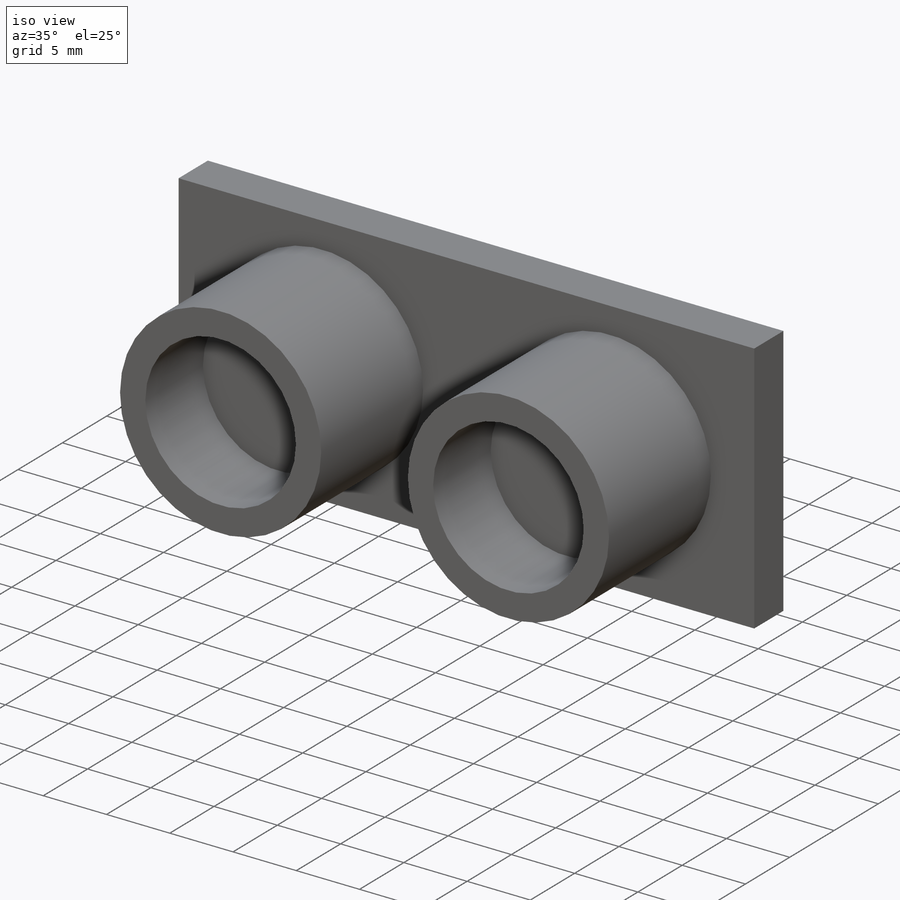
[diagram: iso view]
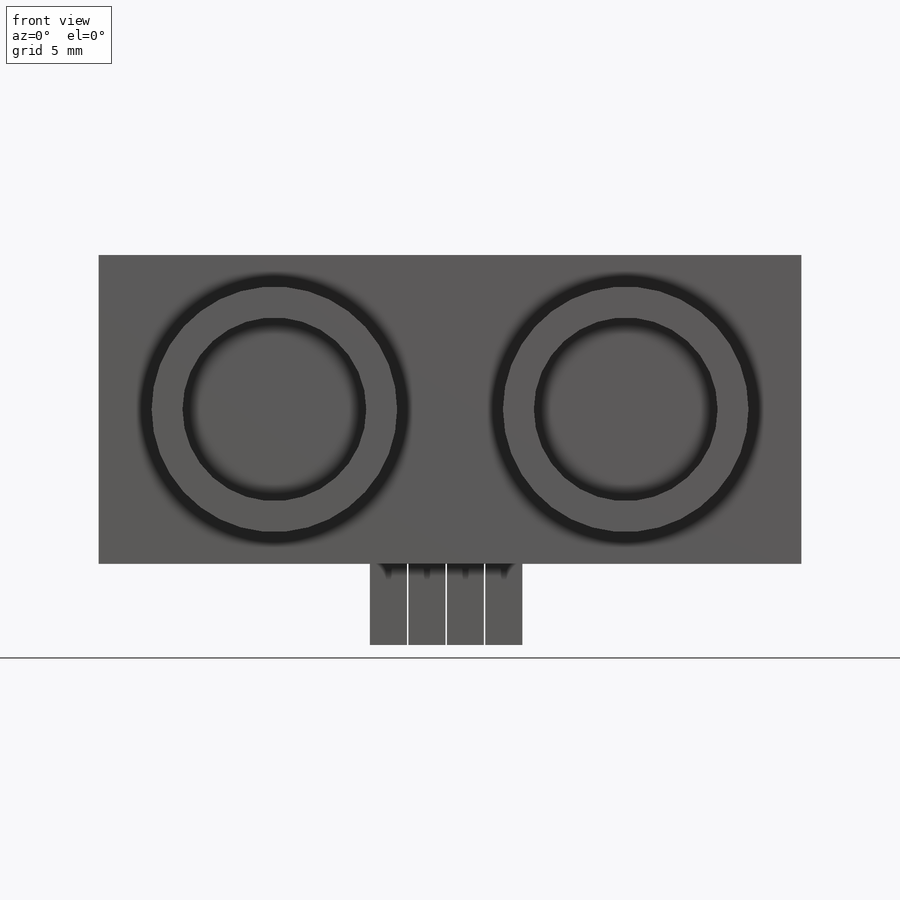
[diagram: front view]
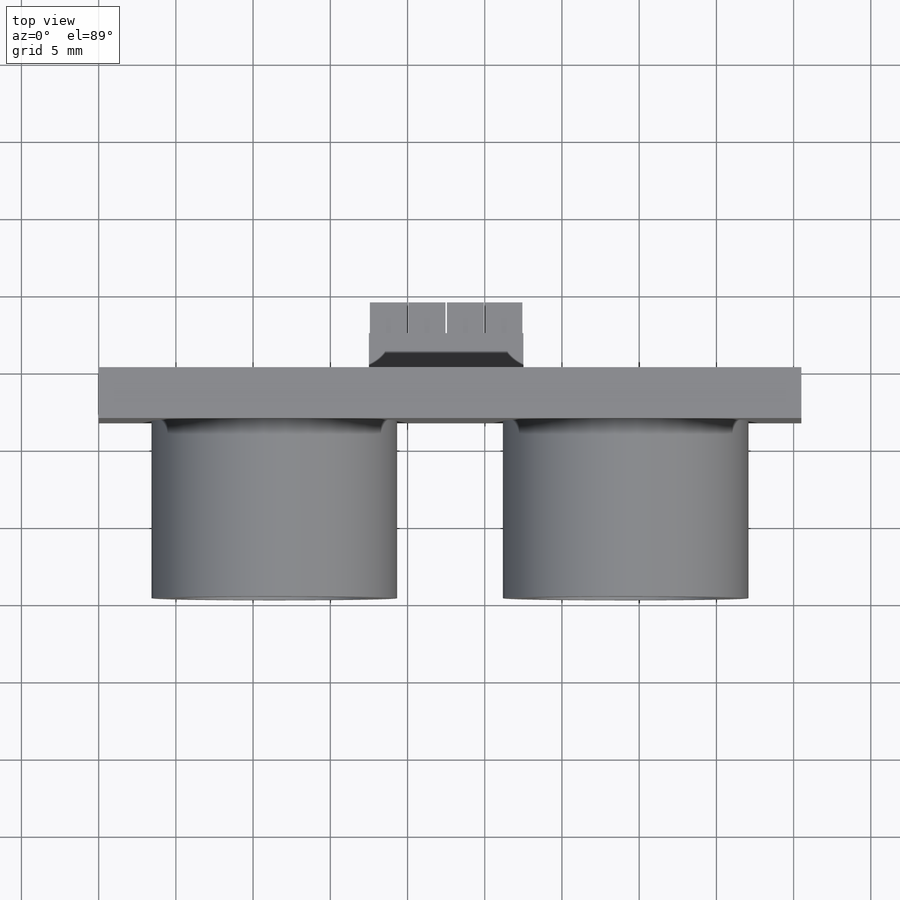
[diagram: top view]
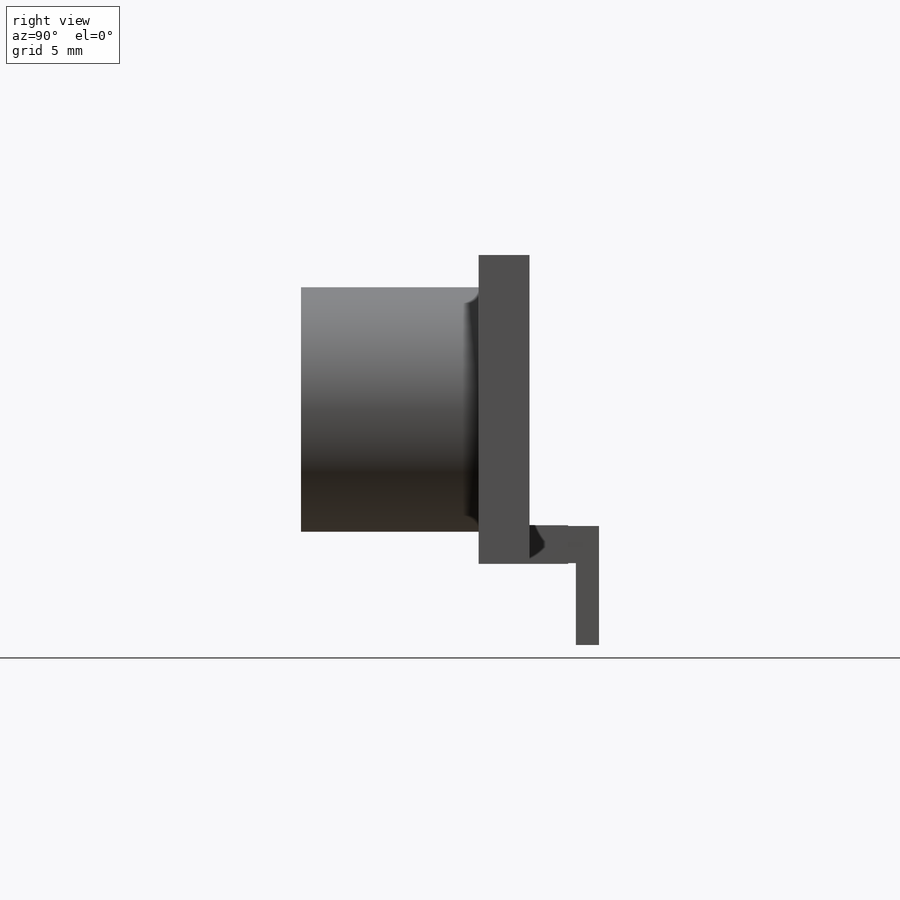
[diagram: right view]
SOLIDWORKS PART (.sldprt)
format: sldprt  version: not decoded by parser v0  size: 289,280 bytes
history: native  units: mm
features: sketch x6, extrude x5, plane x3, material x1, cut_extrude x1 (+10 scaffold rows collapsed)
feature tree (26):
  scaffold x10  (default folders/planes/origin — collapsed)
  material  "Material <not specified>"
  plane  "Alzado"
  plane  "Planta"
  plane  "Vista lateral"
  sketch  "Croquis1"  dims[D1=45.5mm D2=20.0mm]
  extrude  "Saliente-Extruir1"  Depth=3.3mm
  sketch  "Croquis2"  dims[c1.D1=15.9mm c1.D2=2.0mm c2.D2=270.0deg c3.D2=11.375mm]
  extrude  "Saliente-Extruir2"  Depth=11.5mm
  sketch  "Croquis3"  dims[D1=2.0mm]
  cut_extrude  "Cortar-Extruir1"  Depth=6.5mm
  sketch  "Croquis4"  dims[D1=10.0mm D2=17.5mm D3=2.5mm]
  extrude  "Saliente-Extruir3"  Depth=2.5mm
  sketch  "Croquis5"  dims[D1=0.05mm D2=0.05mm D3=0.065mm D4=0.065mm D5=0.09mm D6=0.09mm D7=0.05mm]
  extrude  "Saliente-Extruir4"  Depth=2mm
  sketch  "Croquis6"  dims[D1=1.5mm]
  extrude  "Saliente-Extruir5"  Depth=5.3mm
decode coverage: 12 of 12 modeling features carry decoded parameters
note: suppression state not decoded; provenance and decode notes live in map.json
